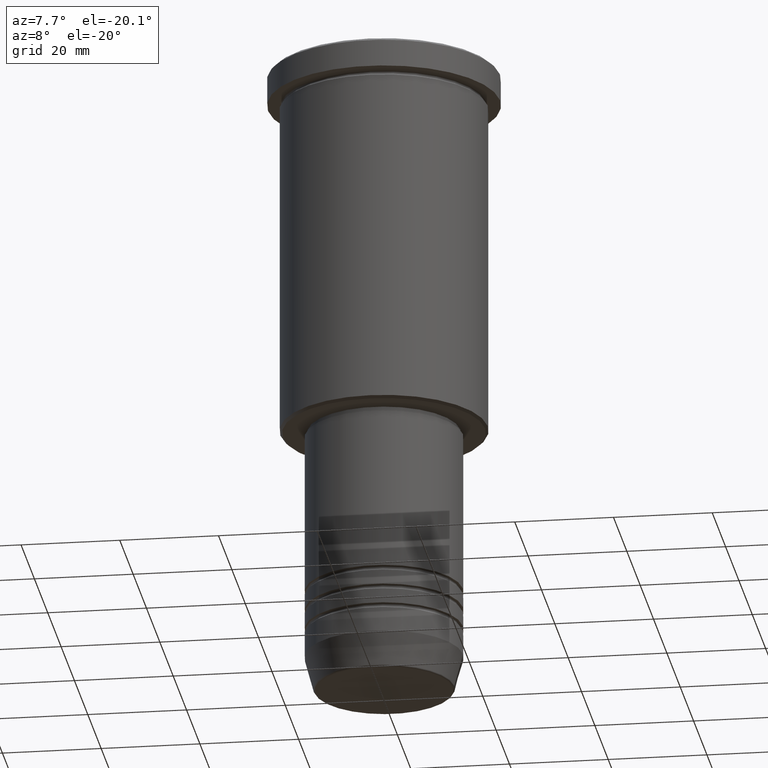
[diagram: clean part render]
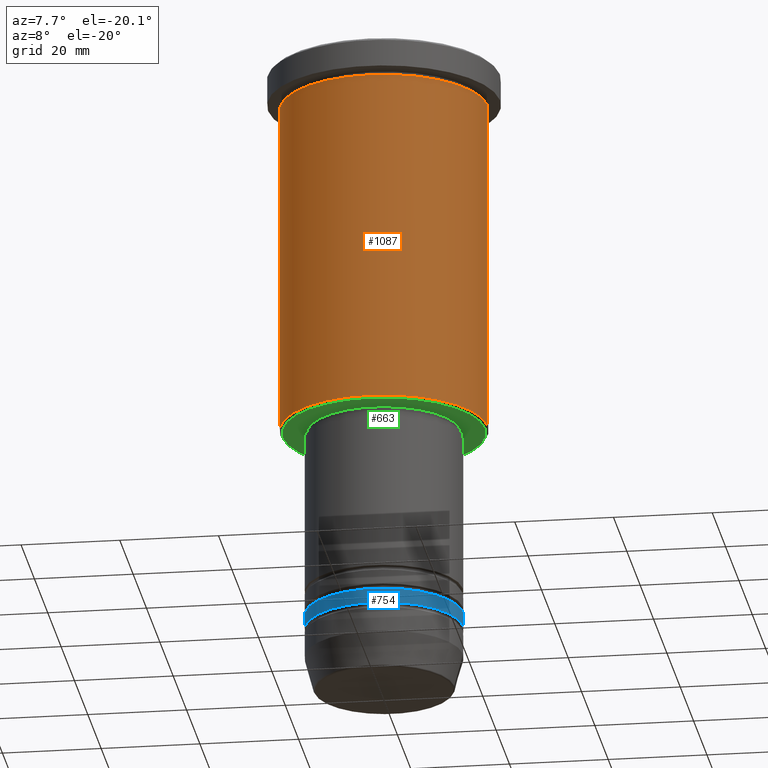
[diagram: same view with three faces highlighted in distinct colors, each labeled with its STEP entity id]
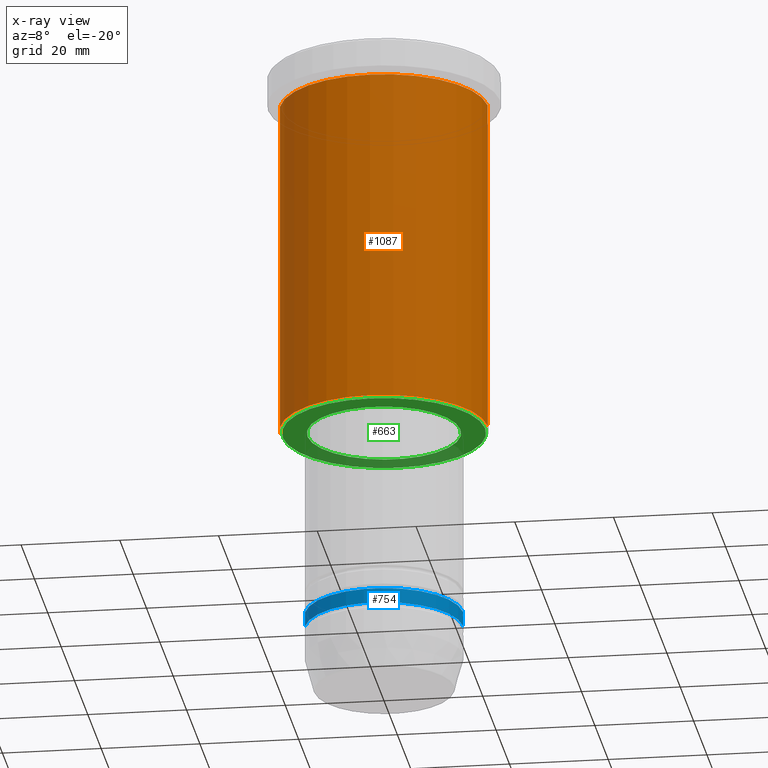
[diagram: x-ray of the same camera — body ghosted, the three highlighted faces saturated]
A machine part, auxiliary view with three faces highlighted in distinct colors.
The next image is the same camera in x-ray (body ghosted, the three faces saturated) — at least one of them is partly hidden behind the body in this view.
Their STEP definitions:

[orange] entity #1087 — the highlighted cylindrical surface (partial cylindrical patch) has radius 21 mm, axis along (-0, -0, 1).
#6 = AXIS2_PLACEMENT_3D ( 'NONE', #1100, #198, #1183 ) ;
#8 = CARTESIAN_POINT ( 'NONE',  ( 0.000000000000000000, 0.000000000000000000, -6.999999999999993783 ) ) ;
#12 = VERTEX_POINT ( 'NONE', #1135 ) ;
#39 = EDGE_CURVE ( 'NONE', #12, #963, #388, .T. ) ;
#76 = DIRECTION ( 'NONE',  ( -0.000000000000000000, -0.000000000000000000, 1.000000000000000000 ) ) ;
#101 = VECTOR ( 'NONE', #972, 1000.000000000000000 ) ;
#117 = CIRCLE ( 'NONE', #1089, 21.00000000000000000 ) ;
#130 = VECTOR ( 'NONE', #76, 1000.000000000000000 ) ;
#146 = CARTESIAN_POINT ( 'NONE',  ( 21.00000000000000000, 0.000000000000000000, 0.000000000000000000 ) ) ;
#151 = CARTESIAN_POINT ( 'NONE',  ( -21.00000000000000000, 2.571758278209441661E-15, 0.000000000000000000 ) ) ;
#166 = EDGE_CURVE ( 'NONE', #498, #963, #348, .T. ) ;
#198 = DIRECTION ( 'NONE',  ( -0.000000000000000000, -0.000000000000000000, 1.000000000000000000 ) ) ;
#202 = CARTESIAN_POINT ( 'NONE',  ( -21.00000000000000000, 2.571758278209441661E-15, -75.50000000000001421 ) ) ;
#221 = VERTEX_POINT ( 'NONE', #202 ) ;
#224 = CARTESIAN_POINT ( 'NONE',  ( 0.000000000000000000, 0.000000000000000000, -75.50000000000001421 ) ) ;
#263 = FACE_OUTER_BOUND ( 'NONE', #558, .T. ) ;
#289 = DIRECTION ( 'NONE',  ( -0.000000000000000000, -0.000000000000000000, 1.000000000000000000 ) ) ;
#292 = ORIENTED_EDGE ( 'NONE', *, *, #939, .F. ) ;
#348 = CIRCLE ( 'NONE', #888, 21.00000000000000000 ) ;
#371 = CYLINDRICAL_SURFACE ( 'NONE', #6, 21.00000000000000000 ) ;
#388 = LINE ( 'NONE', #146, #101 ) ;
#441 = LINE ( 'NONE', #151, #130 ) ;
#498 = VERTEX_POINT ( 'NONE', #574 ) ;
#542 = ORIENTED_EDGE ( 'NONE', *, *, #39, .T. ) ;
#558 = EDGE_LOOP ( 'NONE', ( #292, #957, #542, #1009 ) ) ;
#574 = CARTESIAN_POINT ( 'NONE',  ( -21.00000000000000000, 2.571758278209441661E-15, -6.999999999999993783 ) ) ;
#625 = EDGE_CURVE ( 'NONE', #221, #12, #117, .T. ) ;
#858 = DIRECTION ( 'NONE',  ( -1.000000000000000000, 0.000000000000000000, 0.000000000000000000 ) ) ;
#872 = DIRECTION ( 'NONE',  ( -0.000000000000000000, -0.000000000000000000, 1.000000000000000000 ) ) ;
#888 = AXIS2_PLACEMENT_3D ( 'NONE', #8, #289, #930 ) ;
#930 = DIRECTION ( 'NONE',  ( 1.000000000000000000, 0.000000000000000000, 0.000000000000000000 ) ) ;
#939 = EDGE_CURVE ( 'NONE', #221, #498, #441, .T. ) ;
#957 = ORIENTED_EDGE ( 'NONE', *, *, #625, .T. ) ;
#963 = VERTEX_POINT ( 'NONE', #1172 ) ;
#972 = DIRECTION ( 'NONE',  ( -0.000000000000000000, -0.000000000000000000, 1.000000000000000000 ) ) ;
#1009 = ORIENTED_EDGE ( 'NONE', *, *, #166, .F. ) ;
#1087 = ADVANCED_FACE ( 'NONE', ( #263 ), #371, .T. ) ;
#1089 = AXIS2_PLACEMENT_3D ( 'NONE', #224, #872, #858 ) ;
#1100 = CARTESIAN_POINT ( 'NONE',  ( 0.000000000000000000, 0.000000000000000000, 0.000000000000000000 ) ) ;
#1135 = CARTESIAN_POINT ( 'NONE',  ( 21.00000000000000000, 0.000000000000000000, -75.50000000000001421 ) ) ;
#1172 = CARTESIAN_POINT ( 'NONE',  ( 21.00000000000000000, 0.000000000000000000, -6.999999999999993783 ) ) ;
#1183 = DIRECTION ( 'NONE',  ( 1.000000000000000000, 0.000000000000000000, 0.000000000000000000 ) ) ;

[blue] entity #754 — the highlighted cylindrical surface (partial cylindrical patch) has radius 16 mm, axis along (-0, -0, 1).
#44 = VECTOR ( 'NONE', #799, 1000.000000000000000 ) ;
#102 = CARTESIAN_POINT ( 'NONE',  ( 0.000000000000000000, 0.000000000000000000, -114.9999999999998863 ) ) ;
#115 = DIRECTION ( 'NONE',  ( -0.000000000000000000, -0.000000000000000000, 1.000000000000000000 ) ) ;
#120 = CIRCLE ( 'NONE', #851, 16.00000000000000000 ) ;
#139 = VERTEX_POINT ( 'NONE', #517 ) ;
#148 = EDGE_CURVE ( 'NONE', #492, #338, #215, .T. ) ;
#172 = AXIS2_PLACEMENT_3D ( 'NONE', #183, #115, #452 ) ;
#181 = EDGE_CURVE ( 'NONE', #637, #139, #120, .T. ) ;
#183 = CARTESIAN_POINT ( 'NONE',  ( 0.000000000000000000, 0.000000000000000000, 0.000000000000000000 ) ) ;
#215 = CIRCLE ( 'NONE', #1055, 16.00000000000000000 ) ;
#216 = ORIENTED_EDGE ( 'NONE', *, *, #148, .T. ) ;
#269 = CARTESIAN_POINT ( 'NONE',  ( 0.000000000000000000, 0.000000000000000000, -117.9999999999998863 ) ) ;
#277 = DIRECTION ( 'NONE',  ( 1.000000000000000000, 0.000000000000000000, 0.000000000000000000 ) ) ;
#322 = DIRECTION ( 'NONE',  ( -0.000000000000000000, -0.000000000000000000, 1.000000000000000000 ) ) ;
#338 = VERTEX_POINT ( 'NONE', #531 ) ;
#424 = DIRECTION ( 'NONE',  ( -0.000000000000000000, -0.000000000000000000, 1.000000000000000000 ) ) ;
#452 = DIRECTION ( 'NONE',  ( 1.000000000000000000, 0.000000000000000000, 0.000000000000000000 ) ) ;
#455 = VECTOR ( 'NONE', #322, 1000.000000000000000 ) ;
#467 = FACE_OUTER_BOUND ( 'NONE', #1044, .T. ) ;
#492 = VERTEX_POINT ( 'NONE', #922 ) ;
#517 = CARTESIAN_POINT ( 'NONE',  ( 16.00000000000000000, 0.000000000000000000, -114.9999999999998863 ) ) ;
#520 = CARTESIAN_POINT ( 'NONE',  ( 16.00000000000000000, 0.000000000000000000, 0.000000000000000000 ) ) ;
#531 = CARTESIAN_POINT ( 'NONE',  ( 16.00000000000000000, 0.000000000000000000, -117.9999999999998863 ) ) ;
#637 = VERTEX_POINT ( 'NONE', #1124 ) ;
#640 = EDGE_CURVE ( 'NONE', #492, #637, #1140, .T. ) ;
#707 = LINE ( 'NONE', #520, #44 ) ;
#714 = EDGE_CURVE ( 'NONE', #338, #139, #707, .T. ) ;
#726 = ORIENTED_EDGE ( 'NONE', *, *, #181, .F. ) ;
#733 = DIRECTION ( 'NONE',  ( -0.000000000000000000, -0.000000000000000000, 1.000000000000000000 ) ) ;
#754 = ADVANCED_FACE ( 'NONE', ( #467 ), #1098, .T. ) ;
#788 = DIRECTION ( 'NONE',  ( 1.000000000000000000, 0.000000000000000000, 0.000000000000000000 ) ) ;
#799 = DIRECTION ( 'NONE',  ( -0.000000000000000000, -0.000000000000000000, 1.000000000000000000 ) ) ;
#851 = AXIS2_PLACEMENT_3D ( 'NONE', #102, #733, #277 ) ;
#922 = CARTESIAN_POINT ( 'NONE',  ( -16.00000000000000000, 1.959434878635765131E-15, -117.9999999999998863 ) ) ;
#943 = ORIENTED_EDGE ( 'NONE', *, *, #640, .F. ) ;
#1044 = EDGE_LOOP ( 'NONE', ( #943, #216, #1090, #726 ) ) ;
#1055 = AXIS2_PLACEMENT_3D ( 'NONE', #269, #424, #788 ) ;
#1090 = ORIENTED_EDGE ( 'NONE', *, *, #714, .T. ) ;
#1098 = CYLINDRICAL_SURFACE ( 'NONE', #172, 16.00000000000000000 ) ;
#1124 = CARTESIAN_POINT ( 'NONE',  ( -16.00000000000000000, 1.959434878635765131E-15, -114.9999999999998863 ) ) ;
#1137 = CARTESIAN_POINT ( 'NONE',  ( -16.00000000000000000, 1.959434878635765131E-15, 0.000000000000000000 ) ) ;
#1140 = LINE ( 'NONE', #1137, #455 ) ;

[green] entity #663 — the highlighted planar face has unit normal (0, 0, -1).
#22 = VERTEX_POINT ( 'NONE', #479 ) ;
#100 = CARTESIAN_POINT ( 'NONE',  ( 0.000000000000000000, 0.000000000000000000, -75.99999999999998579 ) ) ;
#158 = CARTESIAN_POINT ( 'NONE',  ( 0.000000000000000000, 0.000000000000000000, -76.00000000000000000 ) ) ;
#174 = VERTEX_POINT ( 'NONE', #489 ) ;
#191 = VERTEX_POINT ( 'NONE', #211 ) ;
#204 = DIRECTION ( 'NONE',  ( -0.000000000000000000, -0.000000000000000000, 1.000000000000000000 ) ) ;
#211 = CARTESIAN_POINT ( 'NONE',  ( 15.50000000000000000, 0.000000000000000000, -75.99999999999998579 ) ) ;
#218 = EDGE_CURVE ( 'NONE', #837, #191, #704, .T. ) ;
#256 = DIRECTION ( 'NONE',  ( 0.000000000000000000, 0.000000000000000000, -1.000000000000000000 ) ) ;
#279 = ORIENTED_EDGE ( 'NONE', *, *, #993, .T. ) ;
#307 = AXIS2_PLACEMENT_3D ( 'NONE', #469, #753, #937 ) ;
#323 = CIRCLE ( 'NONE', #1125, 15.50000000000000000 ) ;
#350 = EDGE_CURVE ( 'NONE', #22, #174, #686, .T. ) ;
#440 = CARTESIAN_POINT ( 'NONE',  ( 0.000000000000000000, 0.000000000000000000, -76.00000000000000000 ) ) ;
#469 = CARTESIAN_POINT ( 'NONE',  ( 0.000000000000000000, 0.000000000000000000, -75.99999999999998579 ) ) ;
#475 = DIRECTION ( 'NONE',  ( 1.000000000000000000, 0.000000000000000000, 0.000000000000000000 ) ) ;
#479 = CARTESIAN_POINT ( 'NONE',  ( -20.50000000000000355, 2.541142108230758269E-15, -76.00000000000000000 ) ) ;
#484 = AXIS2_PLACEMENT_3D ( 'NONE', #440, #256, #813 ) ;
#488 = EDGE_CURVE ( 'NONE', #191, #837, #323, .T. ) ;
#489 = CARTESIAN_POINT ( 'NONE',  ( 20.50000000000000355, 0.000000000000000000, -76.00000000000000000 ) ) ;
#616 = ORIENTED_EDGE ( 'NONE', *, *, #488, .T. ) ;
#663 = ADVANCED_FACE ( 'NONE', ( #783, #759 ), #878, .T. ) ;
#666 = DIRECTION ( 'NONE',  ( -1.000000000000000000, 0.000000000000000000, -0.000000000000000000 ) ) ;
#686 = CIRCLE ( 'NONE', #484, 20.50000000000000355 ) ;
#704 = CIRCLE ( 'NONE', #307, 15.50000000000000000 ) ;
#709 = DIRECTION ( 'NONE',  ( -1.000000000000000000, 0.000000000000000000, 0.000000000000000000 ) ) ;
#753 = DIRECTION ( 'NONE',  ( -0.000000000000000000, -0.000000000000000000, 1.000000000000000000 ) ) ;
#759 = FACE_BOUND ( 'NONE', #1074, .T. ) ;
#770 = CARTESIAN_POINT ( 'NONE',  ( -15.50000000000000000, 1.898202538678397557E-15, -75.99999999999998579 ) ) ;
#771 = ORIENTED_EDGE ( 'NONE', *, *, #218, .T. ) ;
#779 = AXIS2_PLACEMENT_3D ( 'NONE', #1148, #1053, #666 ) ;
#783 = FACE_OUTER_BOUND ( 'NONE', #874, .T. ) ;
#805 = CIRCLE ( 'NONE', #984, 20.50000000000000355 ) ;
#813 = DIRECTION ( 'NONE',  ( -1.000000000000000000, 0.000000000000000000, 0.000000000000000000 ) ) ;
#837 = VERTEX_POINT ( 'NONE', #770 ) ;
#874 = EDGE_LOOP ( 'NONE', ( #279, #1011 ) ) ;
#878 = PLANE ( 'NONE',  #779 ) ;
#937 = DIRECTION ( 'NONE',  ( 1.000000000000000000, 0.000000000000000000, 0.000000000000000000 ) ) ;
#984 = AXIS2_PLACEMENT_3D ( 'NONE', #158, #1152, #709 ) ;
#993 = EDGE_CURVE ( 'NONE', #174, #22, #805, .T. ) ;
#1011 = ORIENTED_EDGE ( 'NONE', *, *, #350, .T. ) ;
#1053 = DIRECTION ( 'NONE',  ( 0.000000000000000000, 0.000000000000000000, -1.000000000000000000 ) ) ;
#1074 = EDGE_LOOP ( 'NONE', ( #616, #771 ) ) ;
#1125 = AXIS2_PLACEMENT_3D ( 'NONE', #100, #204, #475 ) ;
#1148 = CARTESIAN_POINT ( 'NONE',  ( 0.000000000000000000, 21.00000000000000000, -76.00000000000000000 ) ) ;
#1152 = DIRECTION ( 'NONE',  ( 0.000000000000000000, 0.000000000000000000, -1.000000000000000000 ) ) ;